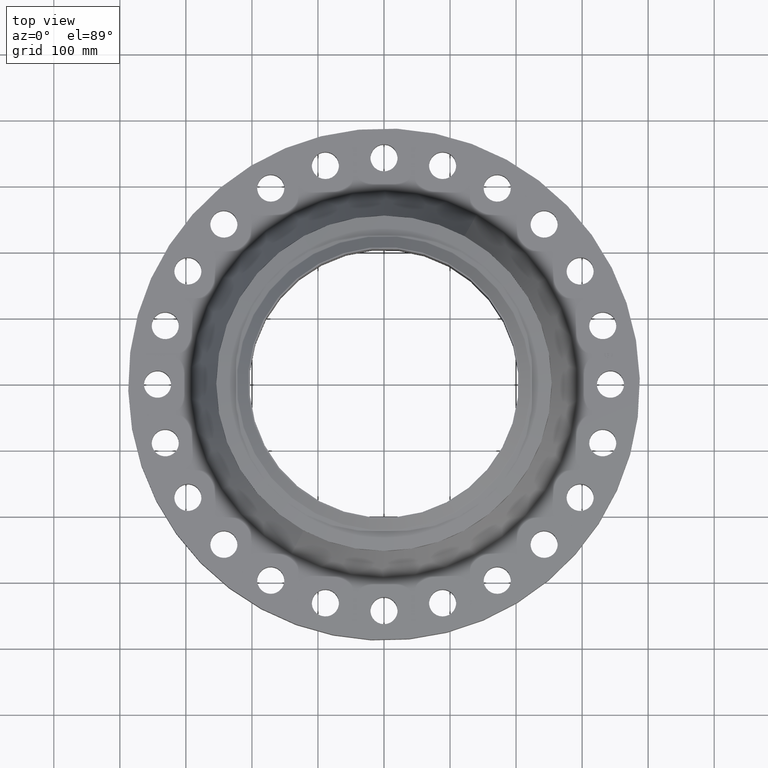
[diagram: clean part render]
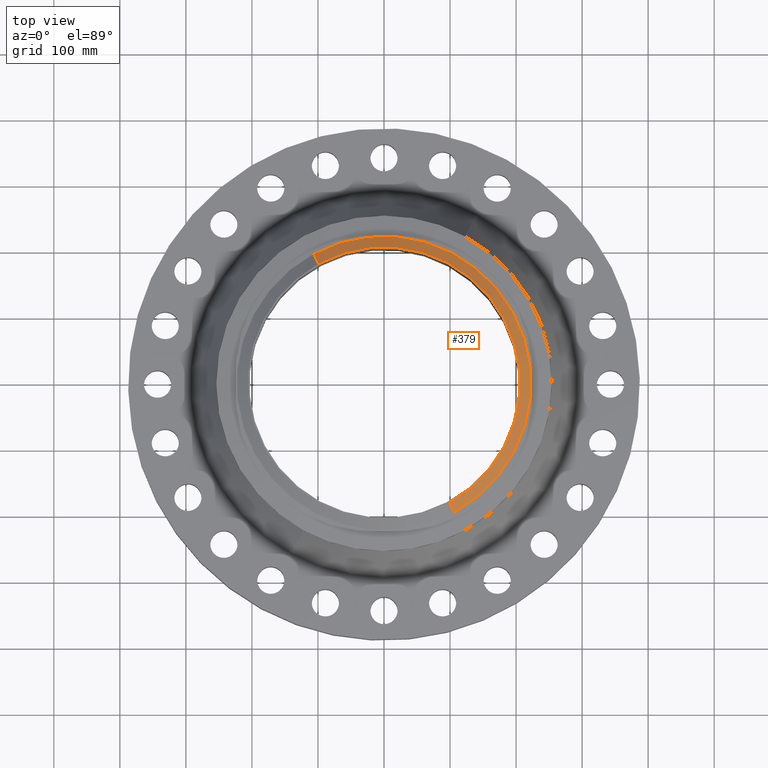
[diagram: same view with one face highlighted and labeled with its STEP entity id]
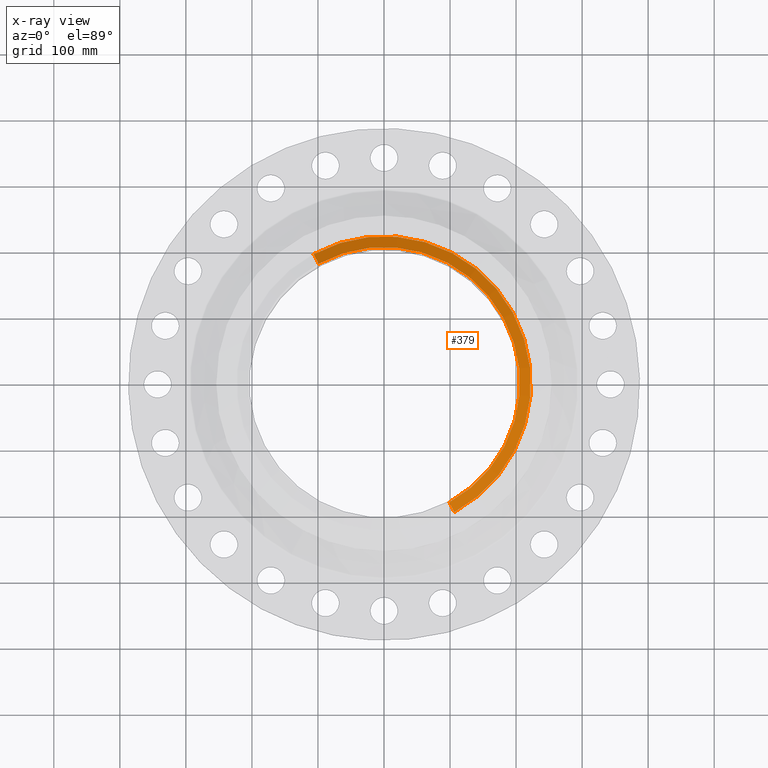
[diagram: x-ray of the same camera — body ghosted, the highlighted face saturated]
A machine part, top view. The second image highlights one B-rep face of the part: STEP entity #379.
The next image is the same camera in x-ray: the body ghosted, the highlighted face saturated — about 0% of this face is hidden behind the body in this view.
In plain terms, the highlighted conical surface has half-angle 52.5 deg.
Its self-contained STEP definition (entity closure, byte-faithful):
#343=AXIS2_PLACEMENT_3D('Cone Axis2P3D',#340,#341,#342) ;
#347=AXIS2_PLACEMENT_3D('Circle Axis2P3D',#345,#346,$) ;
#363=AXIS2_PLACEMENT_3D('Circle Axis2P3D',#361,#362,$) ;
#340=CARTESIAN_POINT('Axis2P3D Location',(0.,0.,6.62000000003)) ;
#345=CARTESIAN_POINT('Axis2P3D Location',(0.,0.,6.62000000003)) ;
#349=CARTESIAN_POINT('Vertex',(3.88801654296,-7.11696654369,6.62000000003)) ;
#351=CARTESIAN_POINT('Vertex',(-3.88801654296,7.11696654369,6.62000000003)) ;
#354=CARTESIAN_POINT('Line Origine',(4.04295784551,-7.4005846956,6.37201437259)) ;
#358=CARTESIAN_POINT('Vertex',(4.19789914806,-7.6842028475,6.12402874516)) ;
#361=CARTESIAN_POINT('Axis2P3D Location',(0.,0.,6.12402874516)) ;
#365=CARTESIAN_POINT('Vertex',(-4.19789914806,7.6842028475,6.12402874516)) ;
#368=CARTESIAN_POINT('Line Origine',(-4.04295784551,7.4005846956,6.37201437259)) ;
#341=DIRECTION('Axis2P3D Direction',(-0.,-0.,-0.0393700787402)) ;
#342=DIRECTION('Axis2P3D XDirection',(0.0188750212049,-0.0345504945626,0.)) ;
#346=DIRECTION('Axis2P3D Direction',(0.,0.,-0.0393700787402)) ;
#355=DIRECTION('Vector Direction',(0.014974561121,-0.02741075027,-0.023966985394)) ;
#362=DIRECTION('Axis2P3D Direction',(0.,0.,-0.0393700787402)) ;
#369=DIRECTION('Vector Direction',(-0.014974561121,0.02741075027,-0.023966985394)) ;
#356=VECTOR('Line Direction',#355,0.0393700787402) ;
#370=VECTOR('Line Direction',#369,0.0393700787402) ;
#374=ORIENTED_EDGE('',*,*,#353,.F.) ;
#375=ORIENTED_EDGE('',*,*,#360,.T.) ;
#376=ORIENTED_EDGE('',*,*,#367,.T.) ;
#377=ORIENTED_EDGE('',*,*,#372,.F.) ;
#379=ADVANCED_FACE('PartBody',(#378),#344,.T.) ;
#348=CIRCLE('generated circle',#347,8.10974015751) ;
#364=CIRCLE('generated circle',#363,8.75610248106) ;
#344=CONICAL_SURFACE('Cone',#343,8.10974015751,0.916297857297) ;
#353=EDGE_CURVE('',#350,#352,#348,.F.) ;
#360=EDGE_CURVE('',#350,#359,#357,.T.) ;
#367=EDGE_CURVE('',#359,#366,#364,.F.) ;
#372=EDGE_CURVE('',#352,#366,#371,.T.) ;
#373=EDGE_LOOP('',(#374,#375,#376,#377)) ;
#378=FACE_OUTER_BOUND('',#373,.T.) ;
#357=LINE('Line',#354,#356) ;
#371=LINE('Line',#368,#370) ;
#350=VERTEX_POINT('',#349) ;
#352=VERTEX_POINT('',#351) ;
#359=VERTEX_POINT('',#358) ;
#366=VERTEX_POINT('',#365) ;